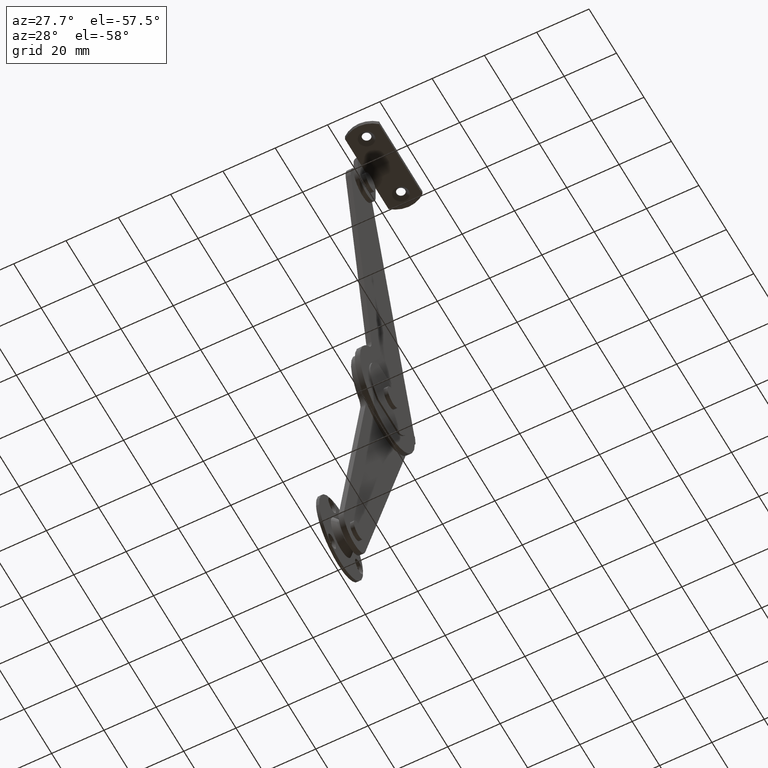
[diagram: clean part render]
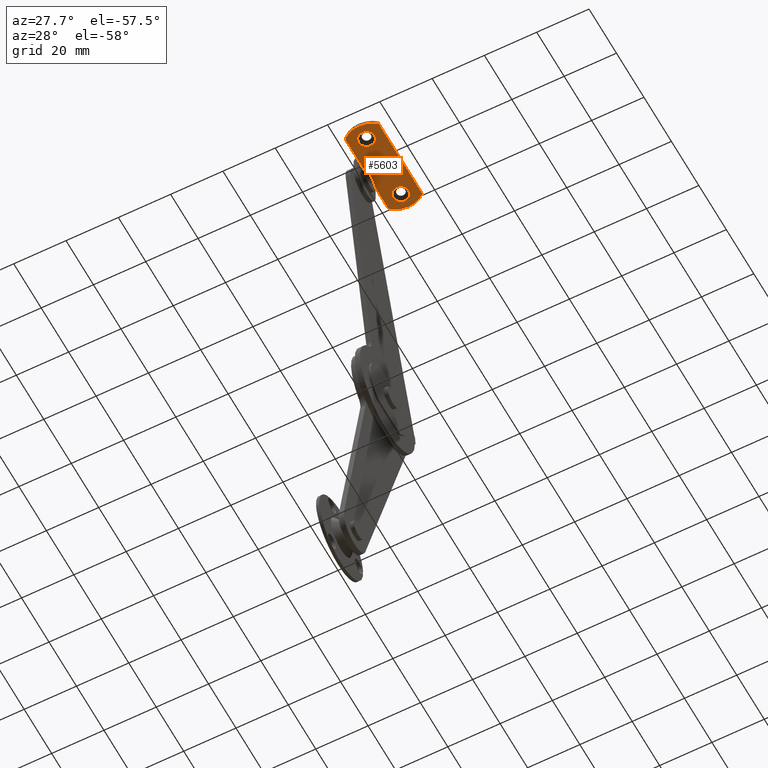
[diagram: same view with one face highlighted and labeled with its STEP entity id]
A machine part, auxiliary view. The second image highlights one B-rep face of the part: STEP entity #5603.
In plain terms, the highlighted face is a freeform B-spline surface patch.
Its self-contained STEP definition (entity closure, byte-faithful):
#4338=CARTESIAN_POINT('',(20.499999940395242,-12.500015000000021,113.998871028423200));
#4339=VERTEX_POINT('',#4338);
#4340=CARTESIAN_POINT('',(19.963183430907240,-10.787494334836930,113.998871028334090));
#4341=VERTEX_POINT('',#4340);
#4342=CARTESIAN_POINT('',(20.499999940395242,-12.500015000000021,113.998871028423200));
#4343=CARTESIAN_POINT('',(20.499999940395242,-11.559617881644826,113.998871028423200));
#4344=CARTESIAN_POINT('',(19.963183430907247,-10.787494334836925,113.998871028334080));
#4352=(BOUNDED_CURVE()B_SPLINE_CURVE(2,(#4342,#4343,#4344),.UNSPECIFIED.,.F.,.U.)B_SPLINE_CURVE_WITH_KNOTS((3,3),(0.500000000000000,0.598090609144483),.UNSPECIFIED.)CURVE()GEOMETRIC_REPRESENTATION_ITEM()RATIONAL_B_SPLINE_CURVE((1.0,0.885079703009200,0.860340221497540))REPRESENTATION_ITEM(''));
#4353=EDGE_CURVE('',#4339,#4341,#4352,.T.);
#4355=CARTESIAN_POINT('',(14.500000059604760,-12.500015000000021,113.998871028423200));
#4356=VERTEX_POINT('',#4355);
#4357=CARTESIAN_POINT('',(14.500000059604760,-12.500015000000021,113.998871028423200));
#4358=CARTESIAN_POINT('',(14.500000059604760,-15.500014940395262,113.998871028423200));
#4359=CARTESIAN_POINT('',(17.500000000000000,-15.500014940395261,113.998871028423200));
#4360=CARTESIAN_POINT('',(20.499999940395245,-15.500014940395262,113.998871028423200));
#4361=CARTESIAN_POINT('',(20.499999940395242,-12.500015000000021,113.998871028423200));
#4369=(BOUNDED_CURVE()B_SPLINE_CURVE(2,(#4357,#4358,#4359,#4360,#4361),.UNSPECIFIED.,.F.,.U.)B_SPLINE_CURVE_WITH_KNOTS((3,2,3),(0.0,0.250000000000000,0.500000000000000),.UNSPECIFIED.)CURVE()GEOMETRIC_REPRESENTATION_ITEM()RATIONAL_B_SPLINE_CURVE((1.0,0.707106781186548,1.0,0.707106781186548,1.0))REPRESENTATION_ITEM(''));
#4370=EDGE_CURVE('',#4356,#4339,#4369,.T.);
#4372=CARTESIAN_POINT('',(17.735377288967431,-9.509263057887695,113.998871027583500));
#4373=VERTEX_POINT('',#4372);
#4374=CARTESIAN_POINT('',(17.735377288967431,-9.509263057887695,113.998871027583480));
#4375=CARTESIAN_POINT('',(17.617870325105340,-9.500015059604779,113.998871028423200));
#4376=CARTESIAN_POINT('',(17.500000000000000,-9.500015059604779,113.998871028423200));
#4377=CARTESIAN_POINT('',(14.500000059604760,-9.500015059604779,113.998871028423200));
#4378=CARTESIAN_POINT('',(14.500000059604760,-12.500015000000021,113.998871028423200));
#4386=(BOUNDED_CURVE()B_SPLINE_CURVE(2,(#4374,#4375,#4376,#4377,#4378),.UNSPECIFIED.,.F.,.U.)B_SPLINE_CURVE_WITH_KNOTS((3,2,3),(0.736331299899720,0.750000000000000,1.0),.UNSPECIFIED.)CURVE()GEOMETRIC_REPRESENTATION_ITEM()RATIONAL_B_SPLINE_CURVE((0.969723354642003,0.983986121722533,1.0,0.707106781186548,1.0))REPRESENTATION_ITEM(''));
#4387=EDGE_CURVE('',#4373,#4356,#4386,.T.);
#4482=CARTESIAN_POINT('',(19.963183430907247,-10.787494334836925,113.998871028334080));
#4483=CARTESIAN_POINT('',(19.152011217251413,-9.620754572927057,113.998871028423200));
#4484=CARTESIAN_POINT('',(17.735377288967431,-9.509263057887695,113.998871027583480));
#4492=(BOUNDED_CURVE()B_SPLINE_CURVE(2,(#4482,#4483,#4484),.UNSPECIFIED.,.F.,.U.)B_SPLINE_CURVE_WITH_KNOTS((3,3),(0.598090609144484,0.736331299899720),.UNSPECIFIED.)CURVE()GEOMETRIC_REPRESENTATION_ITEM()RATIONAL_B_SPLINE_CURVE((0.860340221497540,0.825474467854797,0.969723354642003))REPRESENTATION_ITEM(''));
#4493=EDGE_CURVE('',#4341,#4373,#4492,.T.);
#4662=CARTESIAN_POINT('',(20.499999940395242,12.499984999999979,113.998871028423200));
#4663=VERTEX_POINT('',#4662);
#4664=CARTESIAN_POINT('',(19.963183430907240,14.212505665163080,113.998871028334090));
#4665=VERTEX_POINT('',#4664);
#4666=CARTESIAN_POINT('',(20.499999940395242,12.499984999999979,113.998871028423200));
#4667=CARTESIAN_POINT('',(20.499999940395245,13.440382118355201,113.998871028423180));
#4668=CARTESIAN_POINT('',(19.963183430907232,14.212505665163077,113.998871028334070));
#4676=(BOUNDED_CURVE()B_SPLINE_CURVE(2,(#4666,#4667,#4668),.UNSPECIFIED.,.F.,.U.)B_SPLINE_CURVE_WITH_KNOTS((3,3),(0.500000000000000,0.598090609144486),.UNSPECIFIED.)CURVE()GEOMETRIC_REPRESENTATION_ITEM()RATIONAL_B_SPLINE_CURVE((1.0,0.885079703009197,0.860340221497539))REPRESENTATION_ITEM(''));
#4677=EDGE_CURVE('',#4663,#4665,#4676,.T.);
#4679=CARTESIAN_POINT('',(14.500000059604760,12.499984999999979,113.998871028423200));
#4680=VERTEX_POINT('',#4679);
#4681=CARTESIAN_POINT('',(14.500000059604760,12.499984999999979,113.998871028423200));
#4682=CARTESIAN_POINT('',(14.500000059604760,9.499985059604740,113.998871028423200));
#4683=CARTESIAN_POINT('',(17.500000000000000,9.499985059604740,113.998871028423200));
#4684=CARTESIAN_POINT('',(20.499999940395245,9.499985059604740,113.998871028423200));
#4685=CARTESIAN_POINT('',(20.499999940395242,12.499984999999979,113.998871028423200));
#4693=(BOUNDED_CURVE()B_SPLINE_CURVE(2,(#4681,#4682,#4683,#4684,#4685),.UNSPECIFIED.,.F.,.U.)B_SPLINE_CURVE_WITH_KNOTS((3,2,3),(0.0,0.250000000000000,0.500000000000000),.UNSPECIFIED.)CURVE()GEOMETRIC_REPRESENTATION_ITEM()RATIONAL_B_SPLINE_CURVE((1.0,0.707106781186548,1.0,0.707106781186548,1.0))REPRESENTATION_ITEM(''));
#4694=EDGE_CURVE('',#4680,#4663,#4693,.T.);
#4696=CARTESIAN_POINT('',(17.735377288967431,15.490736942112310,113.998871027583500));
#4697=VERTEX_POINT('',#4696);
#4698=CARTESIAN_POINT('',(17.735377288967431,15.490736942112306,113.998871027583480));
#4699=CARTESIAN_POINT('',(17.617870325105340,15.499984940395217,113.998871028423200));
#4700=CARTESIAN_POINT('',(17.500000000000000,15.499984940395221,113.998871028423200));
#4701=CARTESIAN_POINT('',(14.500000059604760,15.499984940395226,113.998871028423200));
#4702=CARTESIAN_POINT('',(14.500000059604760,12.499984999999979,113.998871028423200));
#4710=(BOUNDED_CURVE()B_SPLINE_CURVE(2,(#4698,#4699,#4700,#4701,#4702),.UNSPECIFIED.,.F.,.U.)B_SPLINE_CURVE_WITH_KNOTS((3,2,3),(0.736331299899720,0.750000000000000,1.0),.UNSPECIFIED.)CURVE()GEOMETRIC_REPRESENTATION_ITEM()RATIONAL_B_SPLINE_CURVE((0.969723354642003,0.983986121722533,1.0,0.707106781186548,1.0))REPRESENTATION_ITEM(''));
#4711=EDGE_CURVE('',#4697,#4680,#4710,.T.);
#4806=CARTESIAN_POINT('',(19.963183430907240,14.212505665163073,113.998871028334050));
#4807=CARTESIAN_POINT('',(19.152011217251410,15.379245427072947,113.998871028423180));
#4808=CARTESIAN_POINT('',(17.735377288967427,15.490736942112315,113.998871027583450));
#4816=(BOUNDED_CURVE()B_SPLINE_CURVE(2,(#4806,#4807,#4808),.UNSPECIFIED.,.F.,.U.)B_SPLINE_CURVE_WITH_KNOTS((3,3),(0.598090609144485,0.736331299899720),.UNSPECIFIED.)CURVE()GEOMETRIC_REPRESENTATION_ITEM()RATIONAL_B_SPLINE_CURVE((0.860340221497539,0.825474467854797,0.969723354642003))REPRESENTATION_ITEM(''));
#4817=EDGE_CURVE('',#4665,#4697,#4816,.T.);
#5282=CARTESIAN_POINT('',(11.0,6.499985000000000,113.998871000000190));
#5283=VERTEX_POINT('',#5282);
#5289=CARTESIAN_POINT('',(11.0,-6.500014999999999,113.998871000000190));
#5290=VERTEX_POINT('',#5289);
#5291=CARTESIAN_POINT('',(11.0,-6.500014999999999,113.998871000000190));
#5292=CARTESIAN_POINT('',(11.0,6.499985000000000,113.998871000000190));
#5293=QUASI_UNIFORM_CURVE('',1,(#5291,#5292),.UNSPECIFIED.,.F.,.U.);
#5294=EDGE_CURVE('',#5290,#5283,#5293,.T.);
#5327=CARTESIAN_POINT('',(11.0,-15.849358000000001,113.998871000000190));
#5328=VERTEX_POINT('',#5327);
#5329=CARTESIAN_POINT('',(11.0,-6.500014999999999,113.998871000000190));
#5330=CARTESIAN_POINT('',(11.0,-15.849358000000001,113.998871000000190));
#5331=QUASI_UNIFORM_CURVE('',1,(#5329,#5330),.UNSPECIFIED.,.F.,.U.);
#5332=EDGE_CURVE('',#5290,#5328,#5331,.T.);
#5410=CARTESIAN_POINT('',(11.000001044290940,15.849327970006000,113.998871000000190));
#5411=VERTEX_POINT('',#5410);
#5417=CARTESIAN_POINT('',(11.000001044290940,15.849327970006000,113.998871000000190));
#5418=CARTESIAN_POINT('',(11.0,6.499985000000000,113.998871000000190));
#5419=QUASI_UNIFORM_CURVE('',1,(#5417,#5418),.UNSPECIFIED.,.F.,.U.);
#5420=EDGE_CURVE('',#5411,#5283,#5419,.T.);
#5455=CARTESIAN_POINT('',(24.0,15.849327000000001,113.998871000000190));
#5456=VERTEX_POINT('',#5455);
#5462=CARTESIAN_POINT('',(24.0,15.849327000000001,113.998871000000190));
#5463=CARTESIAN_POINT('',(17.500000936986524,21.409018153932216,113.998871000000190));
#5464=CARTESIAN_POINT('',(11.000001044290890,15.849327970006049,113.998871000000190));
#5472=(BOUNDED_CURVE()B_SPLINE_CURVE(2,(#5462,#5463,#5464),.UNSPECIFIED.,.F.,.U.)CURVE()GEOMETRIC_REPRESENTATION_ITEM()QUASI_UNIFORM_CURVE()RATIONAL_B_SPLINE_CURVE((1.0,0.759934250717481,1.0))REPRESENTATION_ITEM(''));
#5473=EDGE_CURVE('',#5456,#5411,#5472,.T.);
#5491=CARTESIAN_POINT('',(24.0,-15.849358000000001,113.998871000000190));
#5492=VERTEX_POINT('',#5491);
#5498=CARTESIAN_POINT('',(24.0,-15.849358000000001,113.998871000000190));
#5499=CARTESIAN_POINT('',(24.0,15.849327000000001,113.998871000000190));
#5500=QUASI_UNIFORM_CURVE('',1,(#5498,#5499),.UNSPECIFIED.,.F.,.U.);
#5501=EDGE_CURVE('',#5492,#5456,#5500,.T.);
#5535=CARTESIAN_POINT('',(11.0,-15.849358000000001,113.998871000000190));
#5536=CARTESIAN_POINT('',(17.499999999999993,-21.409048223770036,113.998871000000190));
#5537=CARTESIAN_POINT('',(24.0,-15.849358000000001,113.998871000000190));
#5545=(BOUNDED_CURVE()B_SPLINE_CURVE(2,(#5535,#5536,#5537),.UNSPECIFIED.,.F.,.U.)CURVE()GEOMETRIC_REPRESENTATION_ITEM()QUASI_UNIFORM_CURVE()RATIONAL_B_SPLINE_CURVE((1.0,0.759934246684349,1.0))REPRESENTATION_ITEM(''));
#5546=EDGE_CURVE('',#5328,#5492,#5545,.T.);
#5578=CARTESIAN_POINT('',(10.350650025196520,-20.073190246699120,113.998871000000190));
#5579=CARTESIAN_POINT('',(24.649350323490651,-20.073190246699120,113.998871000000190));
#5580=CARTESIAN_POINT('',(10.350650025196520,20.073160910166418,113.998871000000190));
#5581=CARTESIAN_POINT('',(24.649350323490651,20.073160910166418,113.998871000000190));
#5582=B_SPLINE_SURFACE_WITH_KNOTS('',1,1,((#5578,#5580),(#5579,#5581)),.UNSPECIFIED.,.F.,.F.,.U.,(2,2),(2,2),(0.0,14.298700298294129),(0.0,40.146351156865542),.UNSPECIFIED.);
#5583=ORIENTED_EDGE('',*,*,#5294,.T.);
#5584=ORIENTED_EDGE('',*,*,#5420,.F.);
#5585=ORIENTED_EDGE('',*,*,#5473,.F.);
#5586=ORIENTED_EDGE('',*,*,#5501,.F.);
#5587=ORIENTED_EDGE('',*,*,#5546,.F.);
#5588=ORIENTED_EDGE('',*,*,#5332,.F.);
#5589=EDGE_LOOP('',(#5583,#5584,#5585,#5586,#5587,#5588));
#5590=FACE_OUTER_BOUND('',#5589,.T.);
#5591=ORIENTED_EDGE('',*,*,#4694,.T.);
#5592=ORIENTED_EDGE('',*,*,#4677,.T.);
#5593=ORIENTED_EDGE('',*,*,#4817,.T.);
#5594=ORIENTED_EDGE('',*,*,#4711,.T.);
#5595=EDGE_LOOP('',(#5591,#5592,#5593,#5594));
#5596=FACE_BOUND('',#5595,.T.);
#5597=ORIENTED_EDGE('',*,*,#4370,.T.);
#5598=ORIENTED_EDGE('',*,*,#4353,.T.);
#5599=ORIENTED_EDGE('',*,*,#4493,.T.);
#5600=ORIENTED_EDGE('',*,*,#4387,.T.);
#5601=EDGE_LOOP('',(#5597,#5598,#5599,#5600));
#5602=FACE_BOUND('',#5601,.T.);
#5603=ADVANCED_FACE('',(#5590,#5596,#5602),#5582,.F.);